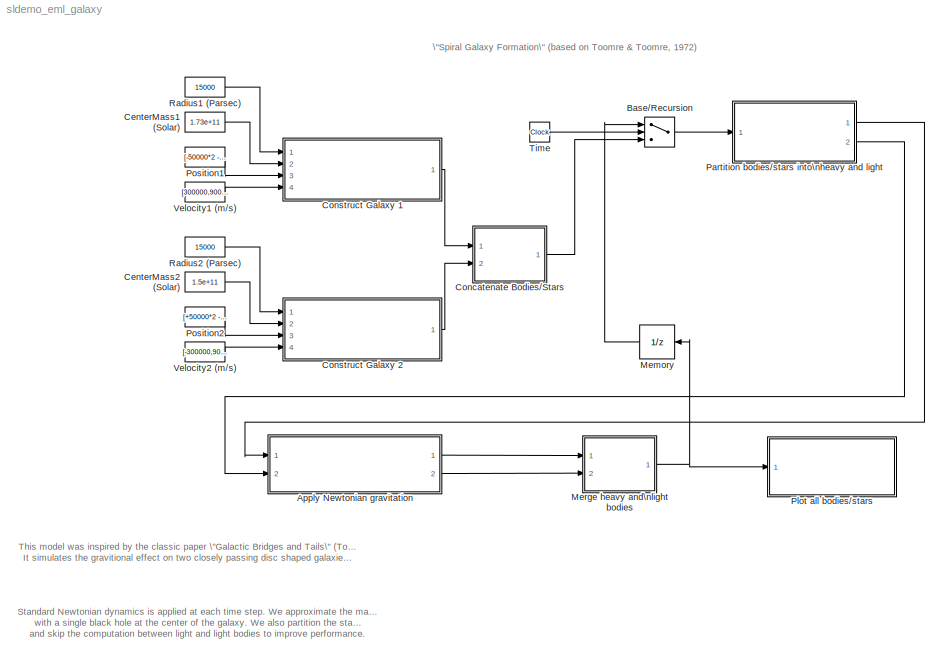
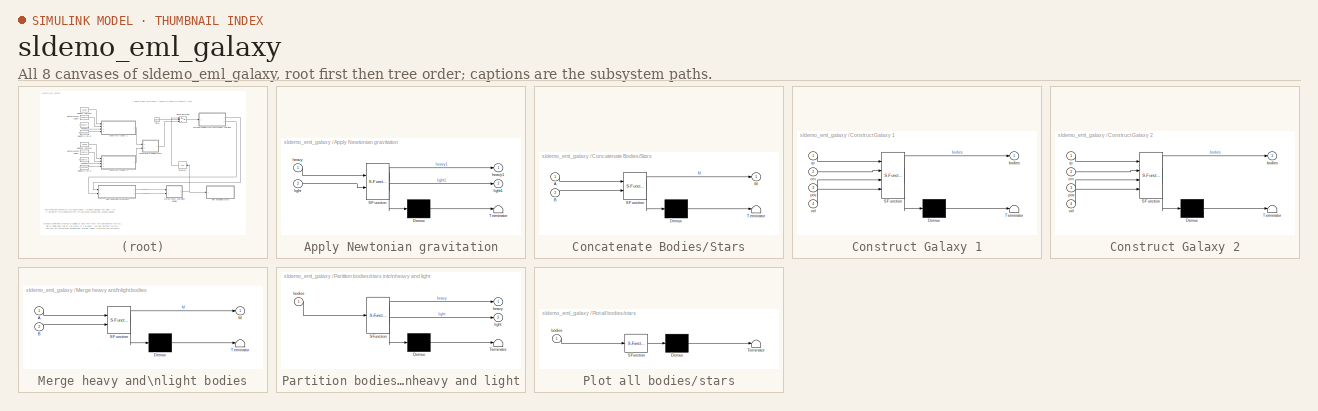
[diagram: thumbnail index - all 8 canvases of the model, root first then tree order]
MODEL sldemo_eml_galaxy
KIND model
BLOCK [SubSystem] Apply Newtonian gravitation
  MaskDescription = Embedded MATLAB block
  MaskDisplay = disp('ApplyGravity');
  MaskIconFrame = on
  MaskIconOpaque = off
  MaskIconRotate = none
  MaskIconUnits = autoscale
  MaskSelfModifiable = on
  MaskType = Stateflow
  MinAlgLoopOccurrences = off
  Ports = [2, 2]
  PropExecContextAcrossSSBoundary = on
  RTWSystemCode = Auto
  TreatAsAtomicUnit = off
BLOCK [Demux] Apply Newtonian gravitation/ Demux 
  Outputs = 1
  Ports = [1, 1]
BLOCK [S-Function] Apply Newtonian gravitation/ SFunction 
  FunctionName = sf_sfun
  PortCounts = [2 3]
  Ports = [2, 3]
  Tag = Stateflow S-Function sldemo_eml_galaxy 3
BLOCK [Terminator] Apply Newtonian gravitation/ Terminator 
BLOCK [Inport] Apply Newtonian gravitation/heavy
  IconDisplay = Port number
  LatchInput = off
  Port = 1
BLOCK [Outport] Apply Newtonian gravitation/heavy1
  BusOutputAsStruct = off
  IconDisplay = Port number
BLOCK [Inport] Apply Newtonian gravitation/light
  IconDisplay = Port number
  LatchInput = off
  Port = 2
BLOCK [Outport] Apply Newtonian gravitation/light1
  BusOutputAsStruct = off
  IconDisplay = Port number
  Port = 2
BLOCK [Switch] Base//Recursion
  Criteria = u2 > Threshold
  InputSameDT = off
  SaturateOnIntegerOverflow = off
  ZeroCross = off
BLOCK [Constant] CenterMass1 (Solar)
  Value = 1.73e+11
BLOCK [Constant] CenterMass2 (Solar)
  Value = 1.5e+11
BLOCK [SubSystem] Concatenate Bodies//Stars
  MaskDescription = Embedded MATLAB block
  MaskDisplay = disp('Concat');
  MaskIconFrame = on
  MaskIconOpaque = off
  MaskIconRotate = none
  MaskIconUnits = autoscale
  MaskSelfModifiable = on
  MaskType = Stateflow
  MinAlgLoopOccurrences = off
  Ports = [2, 1]
  PropExecContextAcrossSSBoundary = on
  RTWSystemCode = Auto
  TreatAsAtomicUnit = off
BLOCK [Demux] Concatenate Bodies//Stars/ Demux 
  Outputs = 1
  Ports = [1, 1]
BLOCK [S-Function] Concatenate Bodies//Stars/ SFunction 
  FunctionName = sf_sfun
  PortCounts = [2 2]
  Ports = [2, 2]
  Tag = Stateflow S-Function sldemo_eml_galaxy 7
BLOCK [Terminator] Concatenate Bodies//Stars/ Terminator 
BLOCK [Inport] Concatenate Bodies//Stars/A
  IconDisplay = Port number
  LatchInput = off
  Port = 1
BLOCK [Inport] Concatenate Bodies//Stars/B
  IconDisplay = Port number
  LatchInput = off
  Port = 2
BLOCK [Outport] Concatenate Bodies//Stars/M
  BusOutputAsStruct = off
  IconDisplay = Port number
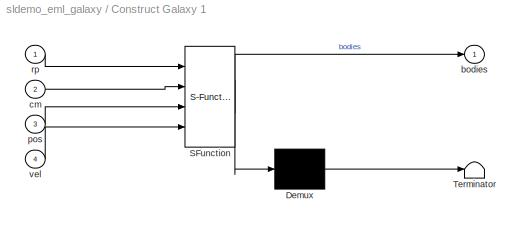
BLOCK [SubSystem] Construct Galaxy 1
  MaskDescription = Embedded MATLAB block
  MaskDisplay = disp('ConstructGalaxy');
  MaskIconFrame = on
  MaskIconOpaque = off
  MaskIconRotate = none
  MaskIconUnits = autoscale
  MaskSelfModifiable = on
  MaskType = Stateflow
  MinAlgLoopOccurrences = off
  Ports = [4, 1]
  PropExecContextAcrossSSBoundary = on
  RTWSystemCode = Auto
  TreatAsAtomicUnit = off
BLOCK [Demux] Construct Galaxy 1/ Demux 
  Outputs = 1
  Ports = [1, 1]
BLOCK [S-Function] Construct Galaxy 1/ SFunction 
  FunctionName = sf_sfun
  PortCounts = [4 2]
  Ports = [4, 2]
  Tag = Stateflow S-Function sldemo_eml_galaxy 2
BLOCK [Terminator] Construct Galaxy 1/ Terminator 
BLOCK [Outport] Construct Galaxy 1/bodies
  BusOutputAsStruct = off
  IconDisplay = Port number
BLOCK [Inport] Construct Galaxy 1/cm
  IconDisplay = Port number
  LatchInput = off
  Port = 2
BLOCK [Inport] Construct Galaxy 1/pos
  IconDisplay = Port number
  LatchInput = off
  Port = 3
BLOCK [Inport] Construct Galaxy 1/rp
  IconDisplay = Port number
  LatchInput = off
  Port = 1
BLOCK [Inport] Construct Galaxy 1/vel
  IconDisplay = Port number
  LatchInput = off
  Port = 4
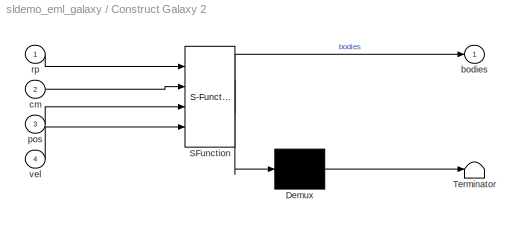
BLOCK [SubSystem] Construct Galaxy 2
  MaskDescription = Embedded MATLAB block
  MaskDisplay = disp('ConstructGalaxy');
  MaskIconFrame = on
  MaskIconOpaque = off
  MaskIconRotate = none
  MaskIconUnits = autoscale
  MaskSelfModifiable = on
  MaskType = Stateflow
  MinAlgLoopOccurrences = off
  Ports = [4, 1]
  PropExecContextAcrossSSBoundary = on
  RTWSystemCode = Auto
  TreatAsAtomicUnit = off
BLOCK [Demux] Construct Galaxy 2/ Demux 
  Outputs = 1
  Ports = [1, 1]
BLOCK [S-Function] Construct Galaxy 2/ SFunction 
  FunctionName = sf_sfun
  PortCounts = [4 2]
  Ports = [4, 2]
  Tag = Stateflow S-Function sldemo_eml_galaxy 6
BLOCK [Terminator] Construct Galaxy 2/ Terminator 
BLOCK [Outport] Construct Galaxy 2/bodies
  BusOutputAsStruct = off
  IconDisplay = Port number
BLOCK [Inport] Construct Galaxy 2/cm
  IconDisplay = Port number
  LatchInput = off
  Port = 2
BLOCK [Inport] Construct Galaxy 2/pos
  IconDisplay = Port number
  LatchInput = off
  Port = 3
BLOCK [Inport] Construct Galaxy 2/rp
  IconDisplay = Port number
  LatchInput = off
  Port = 1
BLOCK [Inport] Construct Galaxy 2/vel
  IconDisplay = Port number
  LatchInput = off
  Port = 4
BLOCK [UnitDelay] Memory
  SampleTime = -1
BLOCK [SubSystem] Merge heavy and\nlight bodies
  MaskDescription = Embedded MATLAB block
  MaskDisplay = disp('Merge');
  MaskIconFrame = on
  MaskIconOpaque = off
  MaskIconRotate = none
  MaskIconUnits = autoscale
  MaskSelfModifiable = on
  MaskType = Stateflow
  MinAlgLoopOccurrences = off
  Ports = [2, 1]
  PropExecContextAcrossSSBoundary = on
  RTWSystemCode = Auto
  TreatAsAtomicUnit = off
BLOCK [Demux] Merge heavy and\nlight bodies/ Demux 
  Outputs = 1
  Ports = [1, 1]
BLOCK [S-Function] Merge heavy and\nlight bodies/ SFunction 
  FunctionName = sf_sfun
  PortCounts = [2 2]
  Ports = [2, 2]
  Tag = Stateflow S-Function sldemo_eml_galaxy 5
BLOCK [Terminator] Merge heavy and\nlight bodies/ Terminator 
BLOCK [Inport] Merge heavy and\nlight bodies/A
  IconDisplay = Port number
  LatchInput = off
  Port = 1
BLOCK [Inport] Merge heavy and\nlight bodies/B
  IconDisplay = Port number
  LatchInput = off
  Port = 2
BLOCK [Outport] Merge heavy and\nlight bodies/M
  BusOutputAsStruct = off
  IconDisplay = Port number
BLOCK [SubSystem] Partition bodies//stars into\nheavy and light
  MaskDescription = Embedded MATLAB block
  MaskDisplay = disp('Partition');
  MaskIconFrame = on
  MaskIconOpaque = off
  MaskIconRotate = none
  MaskIconUnits = autoscale
  MaskSelfModifiable = on
  MaskType = Stateflow
  MinAlgLoopOccurrences = off
  Ports = [1, 2]
  PropExecContextAcrossSSBoundary = on
  RTWSystemCode = Auto
  TreatAsAtomicUnit = off
BLOCK [Demux] Partition bodies//stars into\nheavy and light/ Demux 
  Outputs = 1
  Ports = [1, 1]
BLOCK [S-Function] Partition bodies//stars into\nheavy and light/ SFunction 
  FunctionName = sf_sfun
  PortCounts = [1 3]
  Ports = [1, 3]
  Tag = Stateflow S-Function sldemo_eml_galaxy 4
BLOCK [Terminator] Partition bodies//stars into\nheavy and light/ Terminator 
BLOCK [Inport] Partition bodies//stars into\nheavy and light/bodies
  IconDisplay = Port number
  LatchInput = off
  Port = 1
BLOCK [Outport] Partition bodies//stars into\nheavy and light/heavy
  BusOutputAsStruct = off
  IconDisplay = Port number
BLOCK [Outport] Partition bodies//stars into\nheavy and light/light
  BusOutputAsStruct = off
  IconDisplay = Port number
  Port = 2
BLOCK [SubSystem] Plot all bodies//stars
  MaskDescription = Embedded MATLAB block
  MaskDisplay = disp('PlotAll');
  MaskIconFrame = on
  MaskIconOpaque = off
  MaskIconRotate = none
  MaskIconUnits = autoscale
  MaskSelfModifiable = on
  MaskType = Stateflow
  MinAlgLoopOccurrences = off
  Ports = [1]
  PropExecContextAcrossSSBoundary = on
  RTWSystemCode = Auto
  TreatAsAtomicUnit = off
BLOCK [Demux] Plot all bodies//stars/ Demux 
  Outputs = 1
  Ports = [1, 1]
BLOCK [S-Function] Plot all bodies//stars/ SFunction 
  FunctionName = sf_sfun
  PortCounts = [1 1]
  Ports = [1, 1]
  Tag = Stateflow S-Function sldemo_eml_galaxy 1
BLOCK [Terminator] Plot all bodies//stars/ Terminator 
BLOCK [Inport] Plot all bodies//stars/bodies
  IconDisplay = Port number
  LatchInput = off
  Port = 1
BLOCK [Constant] Position1
  Value = [-50000*2 -70000*2 -30000*2]
BLOCK [Constant] Position2
  Value = [+50000*2 -50000*2 -30000*2]
BLOCK [Constant] Radius1 (Parsec)
  Value = 15000
BLOCK [Constant] Radius2 (Parsec)
  Value = 15000
BLOCK [Clock] Time
  Decimation = 10
BLOCK [Constant] Velocity1 (m//s)
  Value = [300000,90000,0]
BLOCK [Constant] Velocity2 (m//s)
  Value = [-300000,90000,0]
ANNOTATION (root): Standard Newtonian dynamics is applied at each time step. We approximate the massive cloud of stars\nwith a single black hole at the center of the galaxy. We also partition the stars into heavy and light bodies\nand skip the computation between light and light bodies to improve performance.
ANNOTATION (root): This model was inspired by the classic paper \"Galactic Bridges and Tails\" (Toomre & Toomre 1972)\n It simulates the gravitional effect on two closely passing disc shaped galaxies.
ANNOTATION (root): \"Spiral Galaxy Formation\" (based on Toomre & Toomre, 1972)
LINE Apply Newtonian gravitation/ Demux :1 -> Apply Newtonian gravitation/ Terminator :1
LINE Apply Newtonian gravitation/ SFunction :1 -> Apply Newtonian gravitation/ Demux :1
LINE Apply Newtonian gravitation/ SFunction :2 -> Apply Newtonian gravitation/heavy1:1
LINE Apply Newtonian gravitation/ SFunction :3 -> Apply Newtonian gravitation/light1:1
LINE Apply Newtonian gravitation/heavy:1 -> Apply Newtonian gravitation/ SFunction :1
LINE Apply Newtonian gravitation/light:1 -> Apply Newtonian gravitation/ SFunction :2
LINE Apply Newtonian gravitation:1 -> Merge heavy and\nlight bodies:1
LINE Apply Newtonian gravitation:2 -> Merge heavy and\nlight bodies:2
LINE Base//Recursion:1 -> Partition bodies//stars into\nheavy and light:1
LINE CenterMass1 (Solar):1 -> Construct Galaxy 1:2
LINE CenterMass2 (Solar):1 -> Construct Galaxy 2:2
LINE Concatenate Bodies//Stars/ Demux :1 -> Concatenate Bodies//Stars/ Terminator :1
LINE Concatenate Bodies//Stars/ SFunction :1 -> Concatenate Bodies//Stars/ Demux :1
LINE Concatenate Bodies//Stars/ SFunction :2 -> Concatenate Bodies//Stars/M:1
LINE Concatenate Bodies//Stars/A:1 -> Concatenate Bodies//Stars/ SFunction :1
LINE Concatenate Bodies//Stars/B:1 -> Concatenate Bodies//Stars/ SFunction :2
LINE Concatenate Bodies//Stars:1 -> Base//Recursion:3
LINE Construct Galaxy 1/ Demux :1 -> Construct Galaxy 1/ Terminator :1
LINE Construct Galaxy 1/ SFunction :1 -> Construct Galaxy 1/ Demux :1
LINE Construct Galaxy 1/ SFunction :2 -> Construct Galaxy 1/bodies:1
LINE Construct Galaxy 1/cm:1 -> Construct Galaxy 1/ SFunction :2
LINE Construct Galaxy 1/pos:1 -> Construct Galaxy 1/ SFunction :3
LINE Construct Galaxy 1/rp:1 -> Construct Galaxy 1/ SFunction :1
LINE Construct Galaxy 1/vel:1 -> Construct Galaxy 1/ SFunction :4
LINE Construct Galaxy 1:1 -> Concatenate Bodies//Stars:1
LINE Construct Galaxy 2/ Demux :1 -> Construct Galaxy 2/ Terminator :1
LINE Construct Galaxy 2/ SFunction :1 -> Construct Galaxy 2/ Demux :1
LINE Construct Galaxy 2/ SFunction :2 -> Construct Galaxy 2/bodies:1
LINE Construct Galaxy 2/cm:1 -> Construct Galaxy 2/ SFunction :2
LINE Construct Galaxy 2/pos:1 -> Construct Galaxy 2/ SFunction :3
LINE Construct Galaxy 2/rp:1 -> Construct Galaxy 2/ SFunction :1
LINE Construct Galaxy 2/vel:1 -> Construct Galaxy 2/ SFunction :4
LINE Construct Galaxy 2:1 -> Concatenate Bodies//Stars:2
LINE Memory:1 -> Base//Recursion:1
LINE Merge heavy and\nlight bodies/ Demux :1 -> Merge heavy and\nlight bodies/ Terminator :1
LINE Merge heavy and\nlight bodies/ SFunction :1 -> Merge heavy and\nlight bodies/ Demux :1
LINE Merge heavy and\nlight bodies/ SFunction :2 -> Merge heavy and\nlight bodies/M:1
LINE Merge heavy and\nlight bodies/A:1 -> Merge heavy and\nlight bodies/ SFunction :1
LINE Merge heavy and\nlight bodies/B:1 -> Merge heavy and\nlight bodies/ SFunction :2
NET Merge heavy and\nlight bodies:1 -> Memory:1, Plot all bodies//stars:1
LINE Partition bodies//stars into\nheavy and light/ Demux :1 -> Partition bodies//stars into\nheavy and light/ Terminator :1
LINE Partition bodies//stars into\nheavy and light/ SFunction :1 -> Partition bodies//stars into\nheavy and light/ Demux :1
LINE Partition bodies//stars into\nheavy and light/ SFunction :2 -> Partition bodies//stars into\nheavy and light/heavy:1
LINE Partition bodies//stars into\nheavy and light/ SFunction :3 -> Partition bodies//stars into\nheavy and light/light:1
LINE Partition bodies//stars into\nheavy and light/bodies:1 -> Partition bodies//stars into\nheavy and light/ SFunction :1
LINE Partition bodies//stars into\nheavy and light:1 -> Apply Newtonian gravitation:1
LINE Partition bodies//stars into\nheavy and light:2 -> Apply Newtonian gravitation:2
LINE Plot all bodies//stars/ Demux :1 -> Plot all bodies//stars/ Terminator :1
LINE Plot all bodies//stars/ SFunction :1 -> Plot all bodies//stars/ Demux :1
LINE Plot all bodies//stars/bodies:1 -> Plot all bodies//stars/ SFunction :1
LINE Position1:1 -> Construct Galaxy 1:3
LINE Position2:1 -> Construct Galaxy 2:3
LINE Radius1 (Parsec):1 -> Construct Galaxy 1:1
LINE Radius2 (Parsec):1 -> Construct Galaxy 2:1
LINE Time:1 -> Base//Recursion:2
LINE Velocity1 (m//s):1 -> Construct Galaxy 1:4
LINE Velocity2 (m//s):1 -> Construct Galaxy 2:4
note: NET lines group one-source signal fan-out (src -> all destinations, sorted); 1:1 wires keep LINE
CHART Plot all bodies/stars states=1 transitions=1
  STATE_LABEL 'eML_blk_kernel()'
CHART Construct Galaxy 1 states=1 transitions=1
  STATE_LABEL 'eML_blk_kernel()'
CHART Apply Newtonian gravitation states=1 transitions=1
  STATE_LABEL 'eML_blk_kernel()'
CHART Partition bodies/stars into\nheavy and light states=1 transitions=1
  STATE_LABEL 'eML_blk_kernel()'
CHART Merge heavy and\nlight bodies states=1 transitions=1
  STATE_LABEL 'eML_blk_kernel()'
CHART Construct Galaxy 2 states=1 transitions=1
  STATE_LABEL 'eML_blk_kernel()'
CHART Concatenate Bodies/Stars states=1 transitions=1
  STATE_LABEL 'eML_blk_kernel()'
